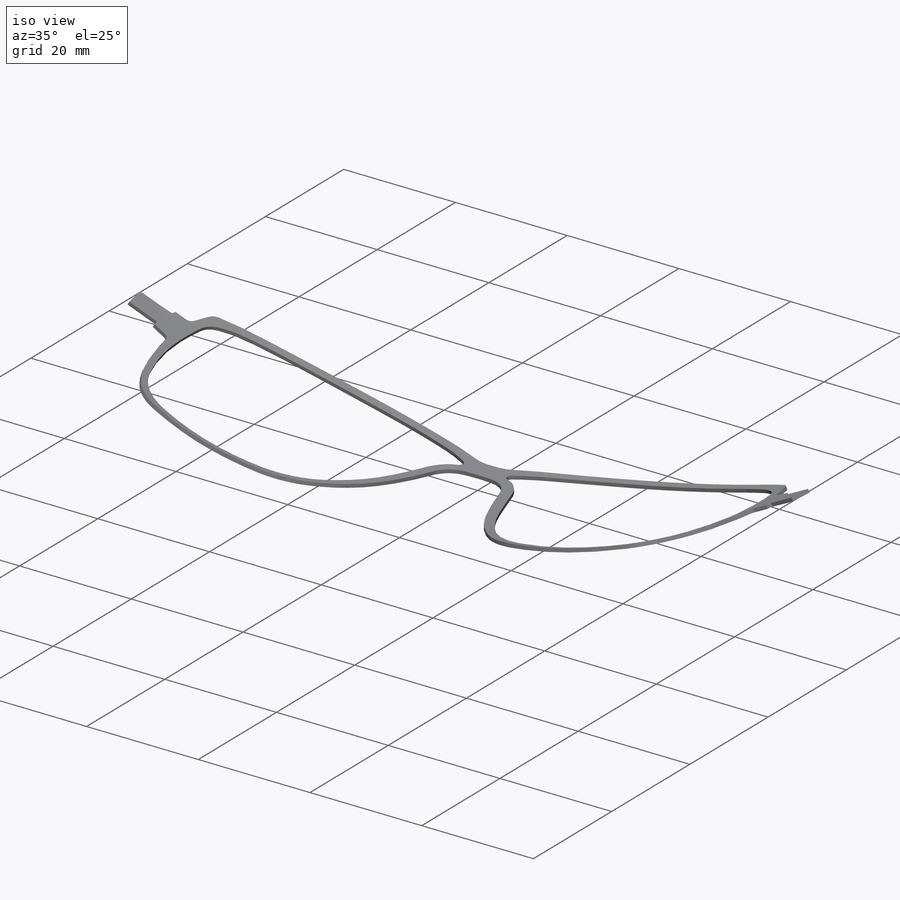
[diagram: iso view]
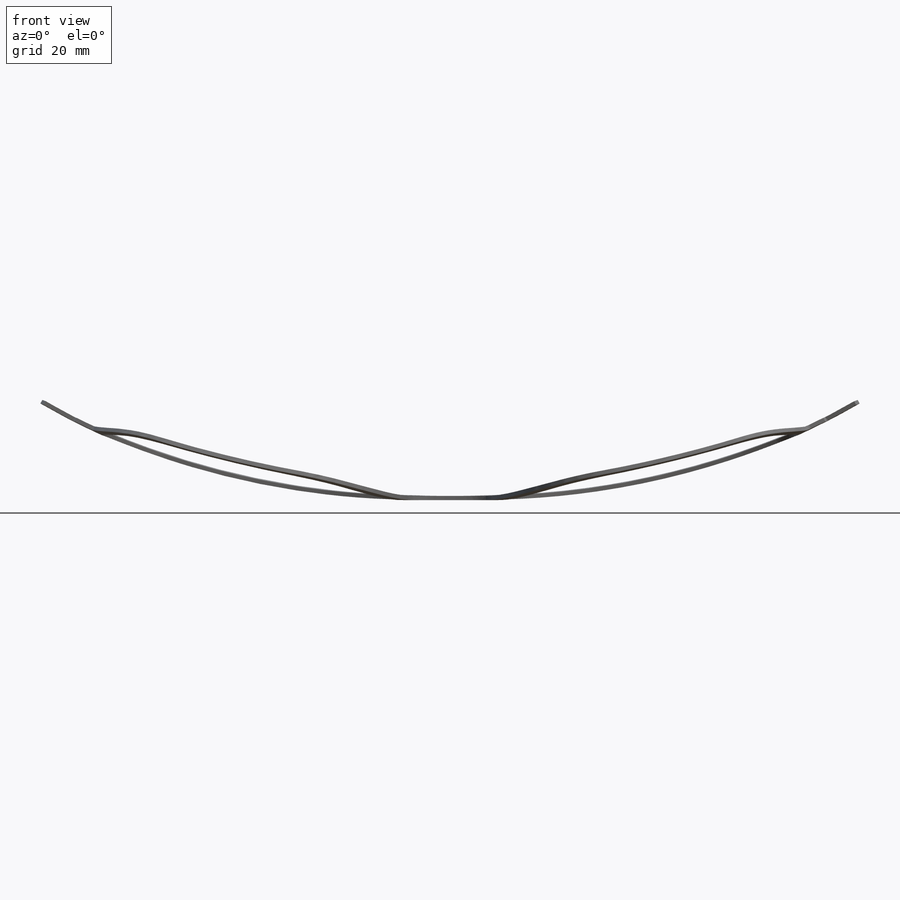
[diagram: front view]
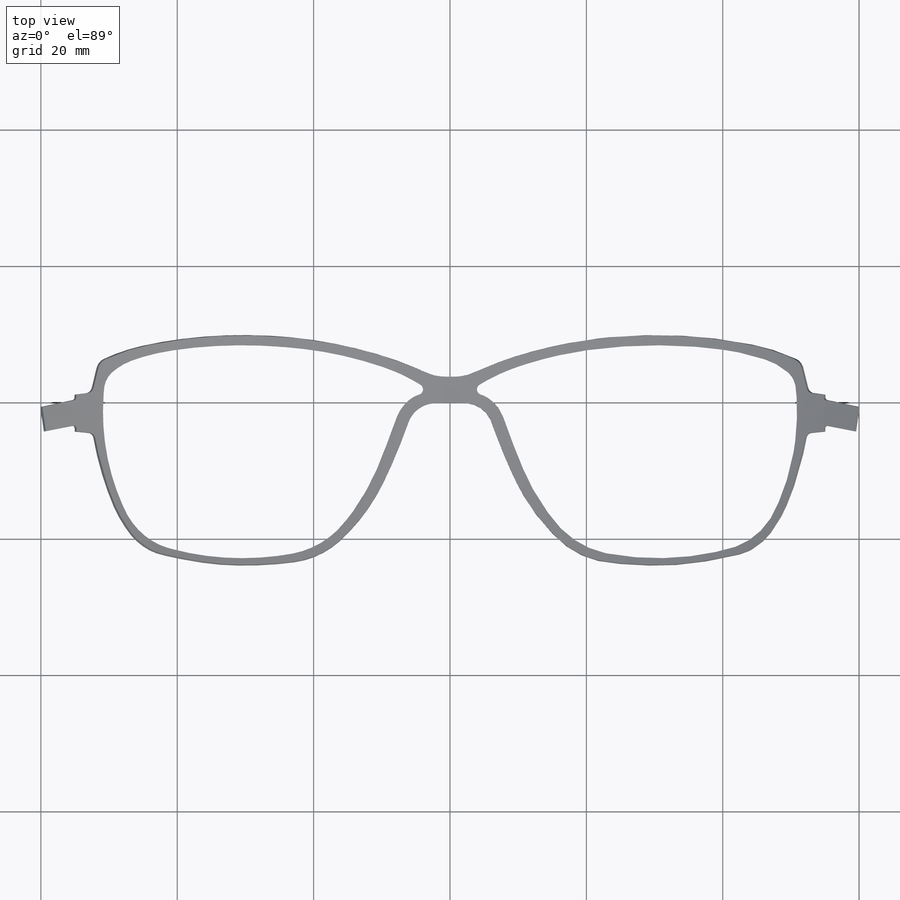
[diagram: top view]
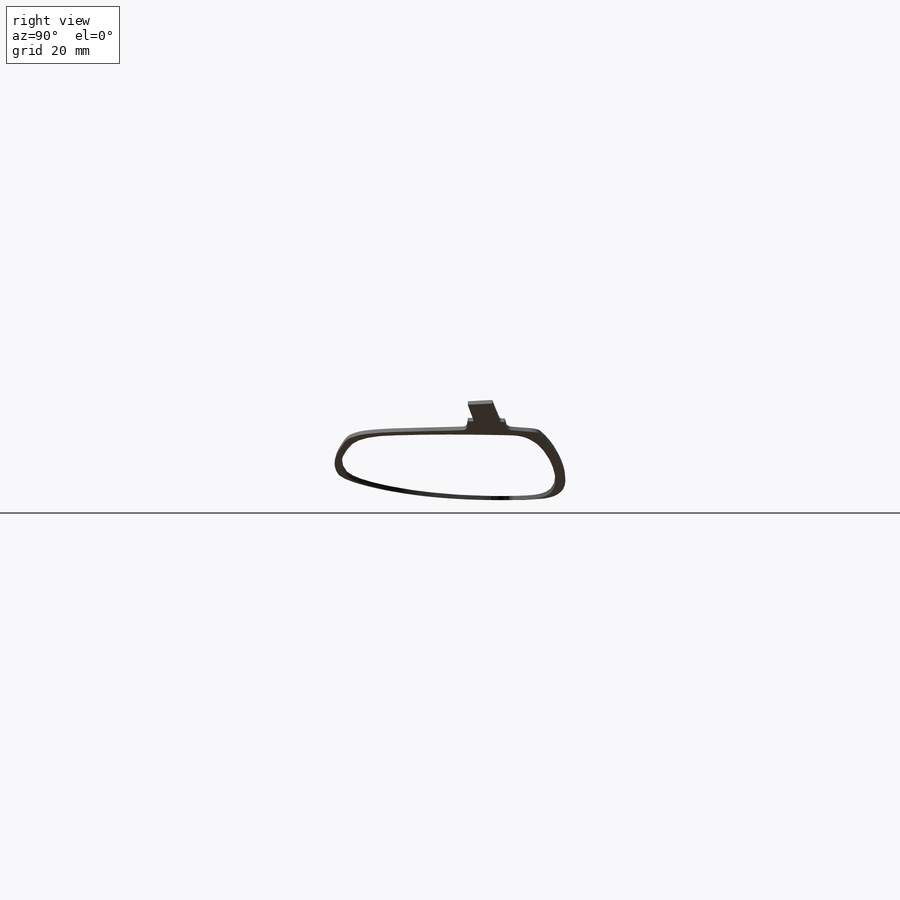
[diagram: right view]
SOLIDWORKS PART (.sldprt)
format: sldprt  version: not decoded by parser v0  size: 708,608 bytes
history: native  units: mm
features: sketch x11, plane x4, revolve x2, mirror x2, material x1, cut_extrude x1, extrude x1, delete_body x1 (+10 scaffold rows collapsed)
feature tree (33):
  scaffold x10  (default folders/planes/origin — collapsed)
  material  "Material <nicht festgelegt>"
  plane  "Ebene vorne"
  plane  "Ebene oben"
  plane  "Ebene rechts"
  plane  "Ebene1"  Offset=13.1mm
  sketch  "Skizze7"  dims[D2=105.6mm D1=7.25mm D3=70.0mm D5=105.0mm D4=0.6mm]
  revolve  "Rotation2"  Angle=360deg
  sketch  "Skizze8"  dims[D1=7.25mm]
  cut_extrude  "Schnitt-Linear austragen3"  Depth=0.6mm
  sketch  "Skizze9"  dims[D1=0.6mm D2=7.0mm D3=7.0mm]
  sketch  "Skizze10"
  mirror  "Spiegeln4"
  sketch  "Skizze12"  dims[Block1-1=0.0deg]
  extrude  "Block1"  Depth=0.5mm
  sketch  "Skizze13"  dims[D1=4.3mm]
  sketch  "Skizze14"
  sketch  "Skizze15"
  sketch  "3D-Skizze1"
  sketch  "3D-Skizze1<2>"
  sketch  "Oberfläche-Trimmen2"
  delete_body  "Körper-Löschen1"
  revolve  "Spiegeln5"  [1 undecoded]
  mirror  "3D-Skizze2"
decode coverage: 8 of 18 modeling features carry decoded parameters
note: 1 parameter value undecoded
note: suppression state not decoded; provenance and decode notes live in map.json
